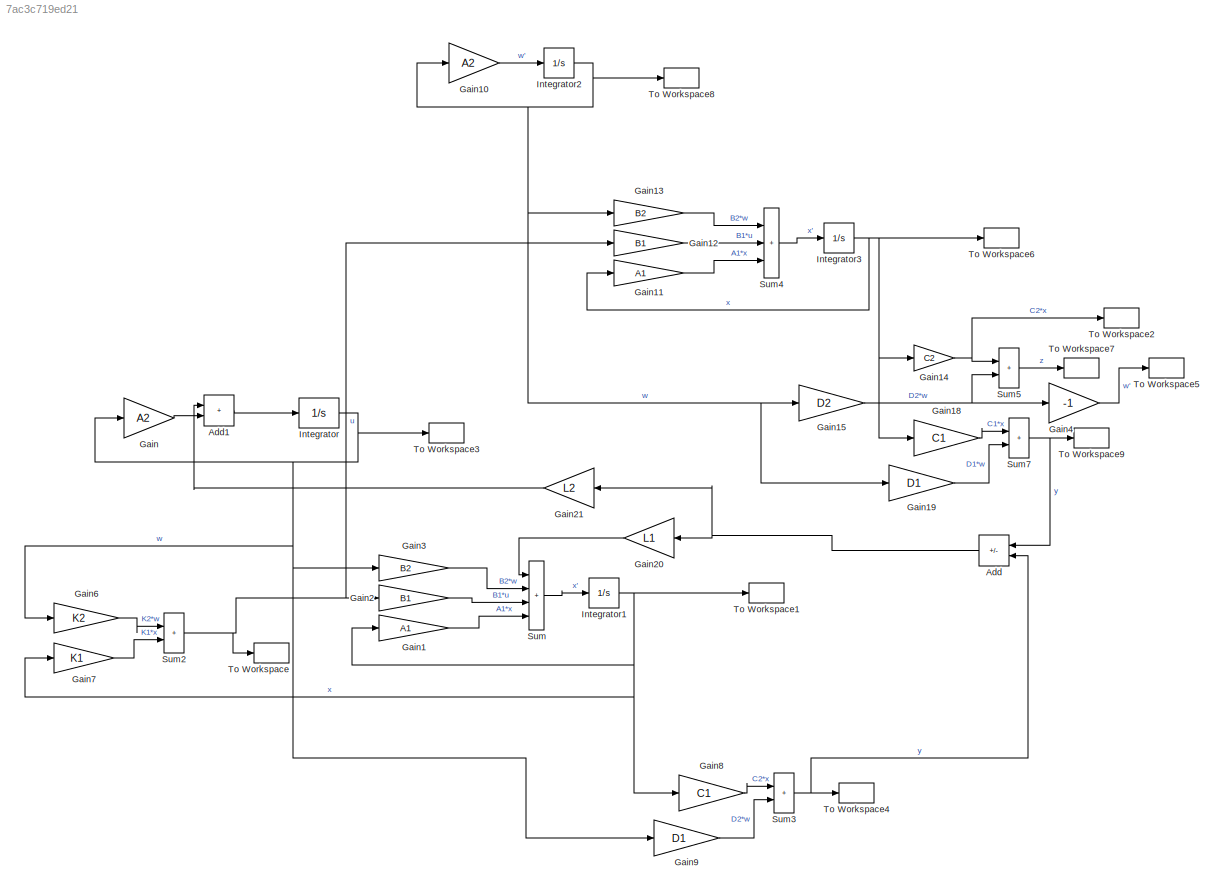
MODEL slx_7ac3c719ed21
KIND model
CONFIG AbsTol = auto
CONFIG EnableMultiTasking = off
CONFIG FixedStep = 0.001
CONFIG MaxStep = auto
CONFIG MinStep = auto
CONFIG RelTol = 1e-3
CONFIG SampleTimeConstraint = Unconstrained
CONFIG SolverName = FixedStepAuto
CONFIG StartTime = 0.0
CONFIG StopTime = 100
BLOCK [Sum] Add
  IconShape = rectangular
  Inputs = -+
  NameLocation = top
  Ports = [2, 1]
BLOCK [Sum] Add1
  IconShape = rectangular
  Ports = [2, 1]
BLOCK [Gain] Gain
  Gain = A2
  Multiplication = Matrix(K*u) (u vector)
BLOCK [Gain] Gain1
  Gain = A1
  Multiplication = Matrix(K*u) (u vector)
BLOCK [Gain] Gain10
  Gain = A2
  Multiplication = Matrix(K*u) (u vector)
BLOCK [Gain] Gain11
  Gain = A1
  Multiplication = Matrix(K*u) (u vector)
BLOCK [Gain] Gain12
  Gain = B1
  Multiplication = Matrix(K*u) (u vector)
BLOCK [Gain] Gain13
  Gain = B2
  Multiplication = Matrix(K*u) (u vector)
BLOCK [Gain] Gain14
  Gain = C2
  Multiplication = Matrix(K*u) (u vector)
BLOCK [Gain] Gain15
  Gain = D2
  Multiplication = Matrix(K*u) (u vector)
BLOCK [Gain] Gain18
  Gain = C1
  Multiplication = Matrix(K*u) (u vector)
BLOCK [Gain] Gain19
  Gain = D1
  Multiplication = Matrix(K*u) (u vector)
BLOCK [Gain] Gain2
  Gain = B1
  Multiplication = Matrix(K*u) (u vector)
BLOCK [Gain] Gain20
  Gain = L1
  Multiplication = Matrix(K*u) (u vector)
  NameLocation = top
BLOCK [Gain] Gain21
  Gain = L2
  Multiplication = Matrix(K*u) (u vector)
  NameLocation = top
BLOCK [Gain] Gain3
  Gain = B2
  Multiplication = Matrix(K*u) (u vector)
BLOCK [Gain] Gain4
  Gain = -1
BLOCK [Gain] Gain6
  Gain = K2
  Multiplication = Matrix(K*u) (u vector)
BLOCK [Gain] Gain7
  Gain = K1
  Multiplication = Matrix(K*u) (u vector)
BLOCK [Gain] Gain8
  Gain = C1
  Multiplication = Matrix(K*u) (u vector)
BLOCK [Gain] Gain9
  Gain = D1
  Multiplication = Matrix(K*u) (u vector)
BLOCK [Integrator] Integrator
  InitialCondition = [0;0;0;0;0;0]
  Ports = [1, 1]
BLOCK [Integrator] Integrator1
  InitialCondition = [0;0]
  Ports = [1, 1]
BLOCK [Integrator] Integrator2
  InitialCondition = [0;1;0;1;0;1]
  Ports = [1, 1]
BLOCK [Integrator] Integrator3
  InitialCondition = [0;0]
  Ports = [1, 1]
BLOCK [Sum] Sum
  IconShape = rectangular
  Inputs = ++++
  Ports = [4, 1]
BLOCK [Sum] Sum2
  IconShape = rectangular
  Inputs = |++
  Ports = [2, 1]
BLOCK [Sum] Sum3
  IconShape = rectangular
  Ports = [2, 1]
BLOCK [Sum] Sum4
  IconShape = rectangular
  Inputs = +++
  Ports = [3, 1]
BLOCK [Sum] Sum5
  IconShape = rectangular
  Ports = [2, 1]
BLOCK [Sum] Sum7
  IconShape = rectangular
  Ports = [2, 1]
BLOCK [ToWorkspace] To Workspace
  FixptAsFi = on
  MaxDataPoints = inf
  Ports = [1]
  SampleTime = -1
  SaveFormat = Timeseries
  VariableName = u
BLOCK [ToWorkspace] To Workspace1
  FixptAsFi = on
  MaxDataPoints = inf
  Ports = [1]
  SampleTime = -1
  SaveFormat = Timeseries
  VariableName = x
BLOCK [ToWorkspace] To Workspace2
  FixptAsFi = on
  MaxDataPoints = inf
  Ports = [1]
  SampleTime = -1
  SaveFormat = Timeseries
  VariableName = C2x
BLOCK [ToWorkspace] To Workspace3
  FixptAsFi = on
  MaxDataPoints = inf
  Ports = [1]
  SampleTime = -1
  SaveFormat = Timeseries
  VariableName = w
BLOCK [ToWorkspace] To Workspace4
  FixptAsFi = on
  MaxDataPoints = inf
  Ports = [1]
  SampleTime = -1
  SaveFormat = Timeseries
  VariableName = y
BLOCK [ToWorkspace] To Workspace5
  FixptAsFi = on
  MaxDataPoints = inf
  Ports = [1]
  SampleTime = -1
  SaveFormat = Timeseries
  VariableName = D2w
BLOCK [ToWorkspace] To Workspace6
  FixptAsFi = on
  MaxDataPoints = inf
  Ports = [1]
  SampleTime = 0.001
  SaveFormat = Timeseries
  VariableName = x1
BLOCK [ToWorkspace] To Workspace7
  FixptAsFi = on
  MaxDataPoints = inf
  Ports = [1]
  SampleTime = -1
  SaveFormat = Timeseries
  VariableName = z1
BLOCK [ToWorkspace] To Workspace8
  FixptAsFi = on
  MaxDataPoints = inf
  Ports = [1]
  SampleTime = -1
  SaveFormat = Timeseries
  VariableName = w1
BLOCK [ToWorkspace] To Workspace9
  FixptAsFi = on
  MaxDataPoints = inf
  Ports = [1]
  SampleTime = -1
  SaveFormat = Timeseries
  VariableName = y1
LINE Add1:1 -> Integrator:1
NET Add:1 -> Gain20:1, Gain21:1
LINE Gain10:1 -> Integrator2:1
LINE Gain11:1 -> Sum4:3
LINE Gain12:1 -> Sum4:2
LINE Gain13:1 -> Sum4:1
NET Gain14:1 -> Sum5:1, To Workspace2:1
NET Gain15:1 -> Gain4:1, Sum5:2
LINE Gain18:1 -> Sum7:1
LINE Gain19:1 -> Sum7:2
LINE Gain1:1 -> Sum:4
LINE Gain20:1 -> Sum:1
LINE Gain21:1 -> Add1:1
LINE Gain2:1 -> Sum:3
LINE Gain3:1 -> Sum:2
LINE Gain4:1 -> To Workspace5:1
LINE Gain6:1 -> Sum2:1
LINE Gain7:1 -> Sum2:2
LINE Gain8:1 -> Sum3:1
LINE Gain9:1 -> Sum3:2
LINE Gain:1 -> Add1:2
NET Integrator1:1 -> Gain1:1, Gain7:1, Gain8:1, To Workspace1:1
NET Integrator2:1 -> Gain10:1, Gain13:1, Gain15:1, Gain19:1, To Workspace8:1
NET Integrator3:1 -> Gain11:1, Gain14:1, Gain18:1, To Workspace6:1
NET Integrator:1 -> Gain3:1, Gain6:1, Gain9:1, Gain:1, To Workspace3:1
NET Sum2:1 -> Gain12:1, Gain2:1, To Workspace:1
NET Sum3:1 -> Add:2, To Workspace4:1
LINE Sum4:1 -> Integrator3:1
LINE Sum5:1 -> To Workspace7:1
NET Sum7:1 -> Add:1, To Workspace9:1
LINE Sum:1 -> Integrator1:1
note: NET lines group one-source signal fan-out (src -> all destinations, sorted); 1:1 wires keep LINE
